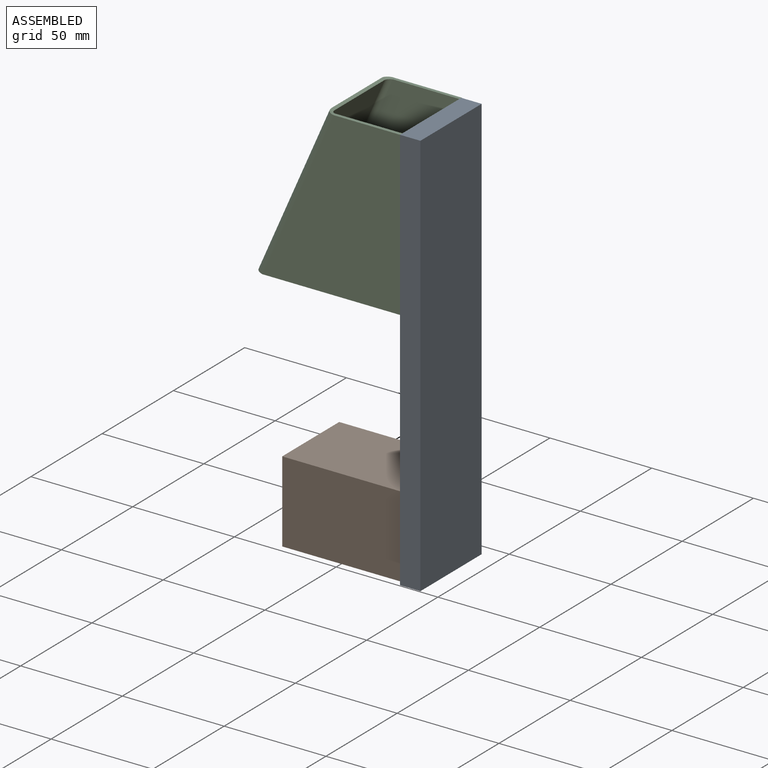
[diagram: assembled view]
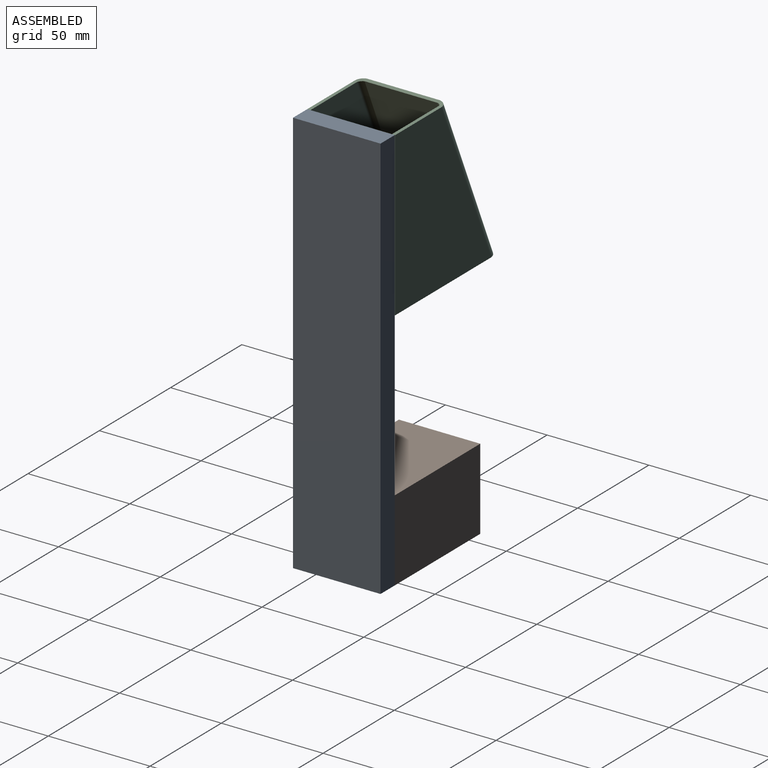
[diagram: assembled view, second angle]
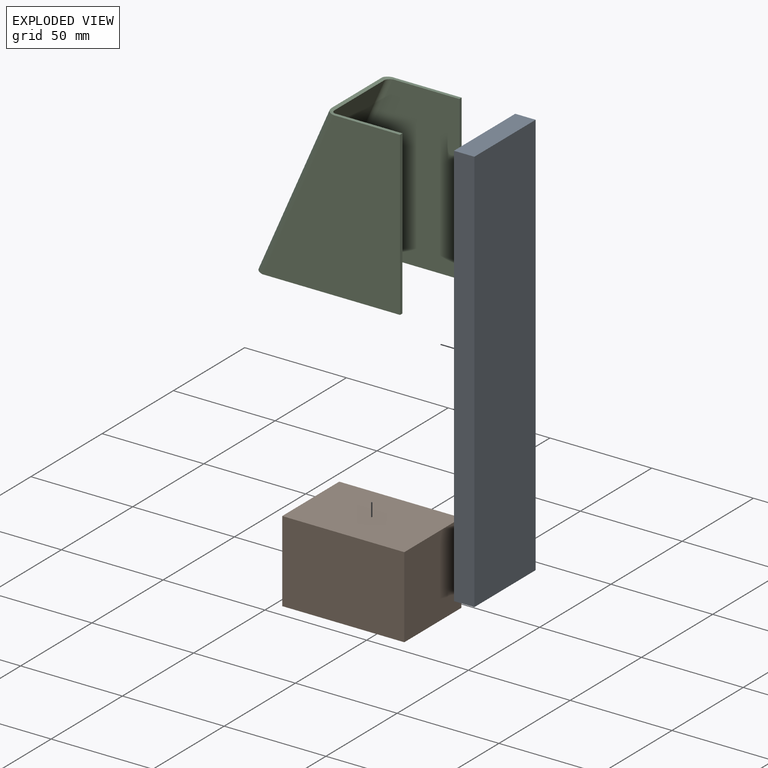
[diagram: exploded view]
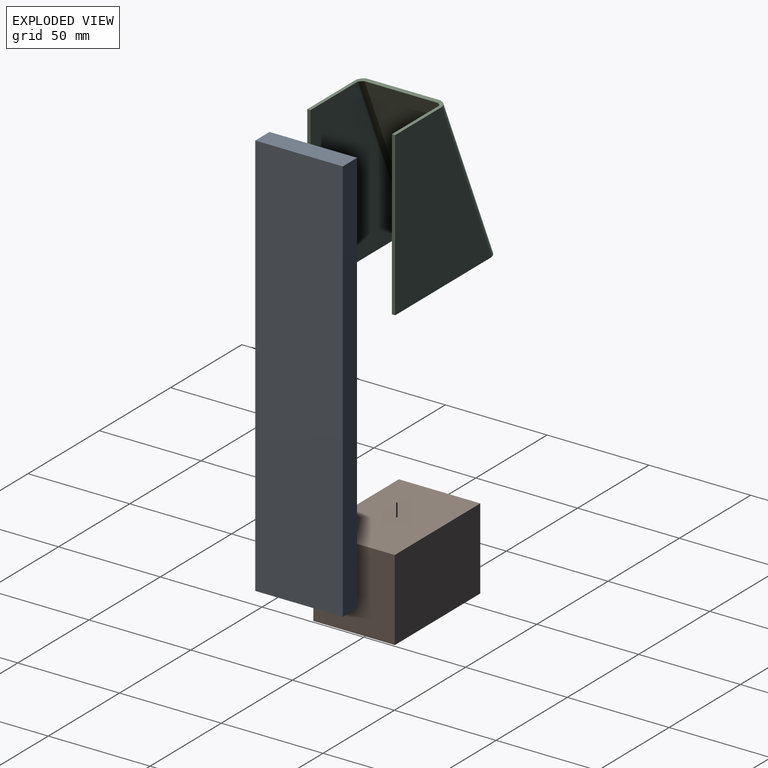
[diagram: exploded view, second angle]
ASSEMBLY  parts=3 mates=5
PART A: 6 faces, bbox 10x43x200 mm
  f0: plane 200x43mm, normal (-1,0,0), area 8600mm2, adj f1,f3,f4,f5
  f1: plane 43x10mm, normal (0,0,-1), area 430mm2, adj f0,f2,f4,f5
  f2: plane 200x43mm, normal (1,0,0), area 8600mm2, adj f1,f3,f4,f5
  f3: plane 43x10mm, normal (0,0,1), area 430mm2, adj f0,f2,f4,f5
  f4: plane 200x10mm, normal (0,-1,0), area 2000mm2, adj f0,f1,f2,f3
  f5: plane 200x10mm, normal (0,1,0), area 2000mm2, adj f0,f1,f2,f3
PART B: 6 faces, bbox 60x40x40 mm
  f0: plane 60x40mm, normal (0,0,-1), area 2400mm2, adj f1,f3,f4,f5
  f1: plane 40x40mm, normal (1,0,0), area 1600mm2, adj f0,f2,f4,f5
  f2: plane 60x40mm, normal (0,0,1), area 2400mm2, adj f1,f3,f4,f5
  f3: plane 40x40mm, normal (-1,0,0), area 1600mm2, adj f0,f2,f4,f5
  f4: plane 60x40mm, normal (0,-1,0), area 2400mm2, adj f0,f1,f2,f3
  f5: plane 60x40mm, normal (0,1,0), area 2400mm2, adj f0,f1,f2,f3
PART C: 22 faces, bbox 71.5x43.2x82.5 mm
  f0: plane 32.49x1.6mm, normal (0,0,1), area 52mm2, adj f1,f3,f4,f19
  f1: plane 80x1.6mm, normal (1,0,0), area 128mm2, adj f0,f2,f3,f4
  f2: plane 67.49x1.6mm, normal (0,0,-1), area 108mm2, adj f1,f3,f4,f18
  f3: plane 80x67.49mm, normal (0,1,0), area 3999.2mm2, adj f0,f1,f2,f20
  f4: plane 80x67.49mm, normal (0,-1,0), area 3999.2mm2, adj f0,f1,f2,f21
  f5: plane 32.49x1.6mm, normal (0,0,1), area 52mm2, adj f7,f8,f9,f15
  f6: plane 67.49x1.6mm, normal (0,0,-1), area 108mm2, adj f7,f8,f9,f14
  f7: plane 80x1.6mm, normal (1,0,0), area 128mm2, adj f5,f6,f8,f9
  f8: plane 80x67.49mm, normal (0,-1,0), area 3999.2mm2, adj f5,f6,f7,f16
  f9: plane 80x67.49mm, normal (0,1,0), area 3999.2mm2, adj f5,f6,f7,f17
  f10: plane 35.4x1.47mm, normal (0.4,0,0.92), area 56.6mm2, adj f12,f13,f15,f19
  f11: plane 35.4x1.47mm, normal (-0.4,0,-0.92), area 56.6mm2, adj f12,f13,f14,f18
  f12: plane 80x35.4mm, normal (-0.92,0,0.4), area 3091.2mm2, adj f10,f11,f16,f20
  f13: plane 80x35.4mm, normal (0.92,0,-0.4), area 3091.2mm2, adj f10,f11,f17,f21
  f14: bspline ~3.98x3.9mm, area 8mm2, adj f6,f11,f16,f17
  f15: bspline ~3.99x3.9mm, area 8.1mm2, adj f5,f10,f16,f17
  f16: cylinder r=3.9mm len=82.49mm, axis (-0.4,0,-0.92), area 533.5mm2, adj f8,f12,f14,f15
  f17: cylinder r=2.3mm len=81.84mm, axis (-0.4,0,-0.92), area 314.7mm2, adj f9,f13,f14,f15
  f18: bspline ~3.98x3.9mm, area 8mm2, adj f2,f11,f20,f21
  f19: bspline ~3.99x3.9mm, area 8.1mm2, adj f0,f10,f20,f21
  f20: cylinder r=3.9mm len=82.49mm, axis (-0.4,0,-0.92), area 533.5mm2, adj f3,f12,f18,f19
  f21: cylinder r=2.3mm len=81.84mm, axis (-0.4,0,-0.92), area 314.6mm2, adj f4,f13,f18,f19
PLACE A t=(47.55,98.53,-27.72)mm
PLACE B t=(47.55,98.53,-27.72)mm
PLACE C t=(47.55,97.13,92.28)mm
MATE planar B.f0 <-> A.f1  axis (0,0,-1) through (17.55,78.53,-27.72)mm
MATE planar C.f7 <-> A.f0  axis (1,0,0) through (47.55,56.33,132.28)mm
MATE planar C.f8 <-> A.f4  axis (0,-1,0) through (21.53,55.53,127.61)mm
MATE planar B.f1 <-> A.f0  axis (1,0,0) through (47.55,78.53,-7.72)mm
MATE planar C.f5 <-> A.f3  axis (0,0,1) through (31.3,56.33,172.28)mm
